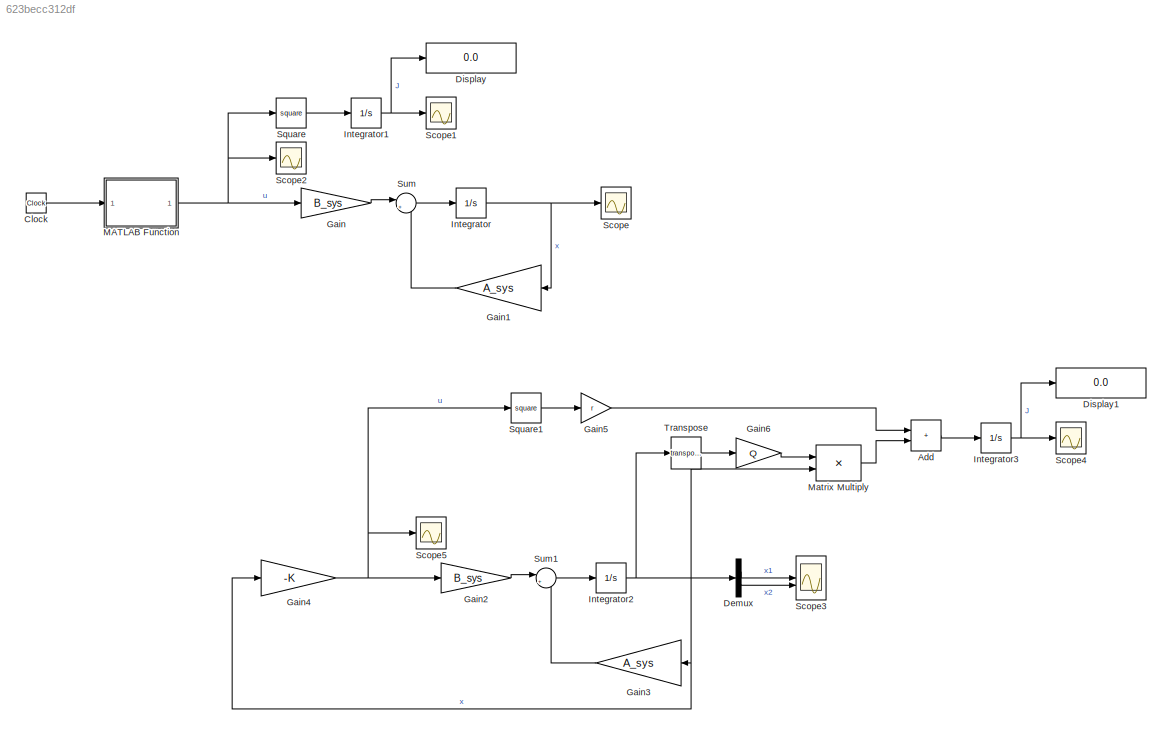
MODEL slx_623becc312df
KIND model
CONFIG AbsTol = auto
CONFIG EnableMultiTasking = off
CONFIG FixedStep = auto
CONFIG InitFcn = A_sys = [-1,1;1,0];\nB_sys = [2;1];\n\nK = [0.9821,1.6726];\nr = 2;\nQ = [3,0;0,5];
CONFIG MaxStep = auto
CONFIG MinStep = auto
CONFIG RelTol = 1e-3
CONFIG SampleTimeConstraint = Unconstrained
CONFIG SolverName = ode45
CONFIG StartTime = 0.0
CONFIG StopTime = pi
BLOCK [Sum] Add
  IconShape = rectangular
BLOCK [Clock] Clock
BLOCK [Demux] Demux
  Outputs = 2
BLOCK [Display] Display
  Decimation = 1
BLOCK [Display] Display1
  Decimation = 1
BLOCK [Gain] Gain
  Gain = B_sys
  Multiplication = Matrix(K*u)
BLOCK [Gain] Gain1
  Gain = A_sys
  Multiplication = Matrix(K*u)
BLOCK [Gain] Gain2
  Gain = B_sys
  Multiplication = Matrix(K*u)
BLOCK [Gain] Gain3
  Gain = A_sys
  Multiplication = Matrix(K*u)
BLOCK [Gain] Gain4
  Gain = -K
  Multiplication = Matrix(K*u)
BLOCK [Gain] Gain5
  Gain = r
BLOCK [Gain] Gain6
  Gain = Q
  Multiplication = Matrix(u*K)
BLOCK [Integrator] Integrator
  InitialCondition = [-0.9243;0]
BLOCK [Integrator] Integrator1
BLOCK [Integrator] Integrator2
  InitialCondition = [1;0]
BLOCK [Integrator] Integrator3
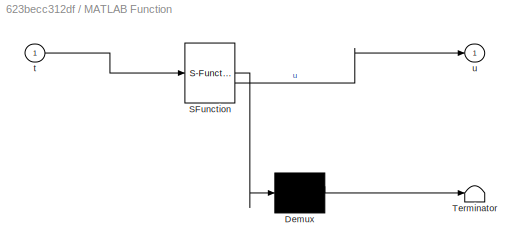
BLOCK [SubSystem] MATLAB Function
  ErrorFcn = Stateflow.Translate.translate
  LibrarySourceBlock = simulink/User-Defined\nFunctions/MATLAB Function
  PermitHierarchicalResolution = ExplicitOnly
  SFBlockType = MATLAB Function
  TreatAsAtomicUnit = on
BLOCK [Demux] MATLAB Function/ Demux 
  Outputs = 1
BLOCK [S-Function] MATLAB Function/ SFunction 
  EnableBusSupport = on
  FunctionName = sf_sfun
  PortCounts = [1 2]
  SFcnIsStateOwnerBlock = off
  SFunctionDeploymentMode = off
  Tag = Stateflow S-Function 2
BLOCK [Terminator] MATLAB Function/ Terminator 
BLOCK [Inport] MATLAB Function/t
BLOCK [Outport] MATLAB Function/u
BLOCK [Product] Matrix Multiply
  Multiplication = Matrix(*)
BLOCK [Scope] Scope
  Floating = off
  NumInputPorts = 1
  ScopeSpecificationString = Simulink.scopes.TimeScopeBlockCfg('CurrentConfiguration', extmgr.ConfigurationSet(extmgr.Configuration('Core','General UI',true),extmgr.Configuration('Core','Source UI',true),extmgr.Configuration('Sources','WiredSimulink',true),extmgr.Configuration('Visuals','Time Domain',true,'SerializedDisplays',{struct('MinYLimReal','-1.39704','MaxYLimReal','1.26642','YLabelReal','','MinYLimMag','0.00000','MaxY...<+1358ch>
BLOCK [Scope] Scope1
  Floating = off
  NumInputPorts = 1
  ScopeSpecificationString = Simulink.scopes.TimeScopeBlockCfg('CurrentConfiguration', extmgr.ConfigurationSet(extmgr.Configuration('Core','General UI',true),extmgr.Configuration('Core','Source UI',true),extmgr.Configuration('Sources','WiredSimulink',true,'DataLoggingVariableName','ScopeData1'),extmgr.Configuration('Visuals','Time Domain',true,'SerializedDisplays',{struct('MinYLimReal','-0.21438','MaxYLimReal','1.92944','YLab...<+1391ch>
BLOCK [Scope] Scope2
  Floating = off
  NumInputPorts = 1
  ScopeSpecificationString = Simulink.scopes.TimeScopeBlockCfg('CurrentConfiguration', extmgr.ConfigurationSet(extmgr.Configuration('Core','General UI',true),extmgr.Configuration('Core','Source UI',true),extmgr.Configuration('Sources','WiredSimulink',true,'DataLoggingVariableName','ScopeData2'),extmgr.Configuration('Visuals','Time Domain',true,'SerializedDisplays',{struct('MinYLimReal','-0.32261','MaxYLimReal','2.66555','YLab...<+1389ch>
BLOCK [Scope] Scope3
  Floating = off
  NumInputPorts = 2
  ScopeSpecificationString = Simulink.scopes.TimeScopeBlockCfg('CurrentConfiguration', extmgr.ConfigurationSet(extmgr.Configuration('Core','General UI',true),extmgr.Configuration('Core','Source UI',true),extmgr.Configuration('Sources','WiredSimulink',true,'DataLoggingVariableName','ScopeData3'),extmgr.Configuration('Visuals','Time Domain',true,'SerializedDisplays',{struct('MinYLimReal','-0.12503','MaxYLimReal','1.125','YLabel...<+2025ch>
BLOCK [Scope] Scope4
  Floating = off
  NumInputPorts = 1
  ScopeSpecificationString = Simulink.scopes.TimeScopeBlockCfg('CurrentConfiguration', extmgr.ConfigurationSet(extmgr.Configuration('Core','General UI',true),extmgr.Configuration('Core','Source UI',true),extmgr.Configuration('Sources','WiredSimulink',true,'DataLoggingVariableName','ScopeData4'),extmgr.Configuration('Visuals','Time Domain',true,'SerializedDisplays',{struct('MinYLimReal','-0.10415','MaxYLimReal','0.93738','YLab...<+1391ch>
BLOCK [Scope] Scope5
  Floating = off
  NumInputPorts = 1
  ScopeSpecificationString = Simulink.scopes.TimeScopeBlockCfg('CurrentConfiguration', extmgr.ConfigurationSet(extmgr.Configuration('Core','General UI',true),extmgr.Configuration('Core','Source UI',true),extmgr.Configuration('Sources','WiredSimulink',true,'DataLoggingVariableName','ScopeData5'),extmgr.Configuration('Visuals','Time Domain',true,'SerializedDisplays',{struct('MinYLimReal','-1.10485','MaxYLimReal','0.12266','YLab...<+1389ch>
BLOCK [Math] Square
  Operator = square
BLOCK [Math] Square1
  Operator = square
BLOCK [Sum] Sum
  Inputs = |++
BLOCK [Sum] Sum1
  Inputs = |++
BLOCK [Math] Transpose
  Operator = transpose
LINE Add:1 -> Integrator3:1
LINE Clock:1 -> MATLAB Function:1
LINE Demux:1 -> Scope3:1
LINE Demux:2 -> Scope3:2
LINE Gain1:1 -> Sum:2
LINE Gain2:1 -> Sum1:1
LINE Gain3:1 -> Sum1:2
NET Gain4:1 -> Gain2:1, Scope5:1, Square1:1
LINE Gain5:1 -> Add:1
LINE Gain6:1 -> Matrix Multiply:1
LINE Gain:1 -> Sum:1
NET Integrator1:1 -> Display:1, Scope1:1
NET Integrator2:1 -> Demux:1, Gain3:1, Gain4:1, Matrix Multiply:2, Transpose:1
NET Integrator3:1 -> Display1:1, Scope4:1
NET Integrator:1 -> Gain1:1, Scope:1
NET MATLAB Function:1 -> Gain:1, Scope2:1, Square:1
LINE Matrix Multiply:1 -> Add:2
LINE Square1:1 -> Gain5:1
LINE Square:1 -> Integrator1:1
LINE Sum1:1 -> Integrator2:1
LINE Sum:1 -> Integrator:1
LINE Transpose:1 -> Gain6:1
note: NET lines group one-source signal fan-out (src -> all destinations, sorted); 1:1 wires keep LINE
CHART MATLAB Function states=1 transitions=1
  STATE_LABEL 'eML_blk_kernel()'
  STATE_LABEL 'SCRIPT:\nfunction u = fcn(t)\nu = (exp(t./2.0+pi).*(exp((pi.*(sqrt(5.0).*3.0-1.0))./2.0)-exp(pi.*(-1.0./2.0)+(sqrt(5.0).*pi)./2.0+sqrt(5.0).*t)+exp(pi.*(-1.0./2.0)+sqrt(5.0).*pi.*(3.0./2.0)+sqrt(5.0).*t)-exp((pi.*(sqrt(5.0)-1.0))./2.0)+sqrt(5.0).*exp(pi.*(-1.0./2.0)+(sqrt(5.0).*pi)./2.0+sqrt(5.0).*t)-sqrt(5.0).*exp(pi.*(-1.0./2.0)+sqrt(5.0).*pi.*(3.0./2.0)+sqrt(5.0).*t)-sqrt(5.0).*exp((pi.*(sqrt(5.0...<+363ch>'
CHART  states=0 transitions=0
